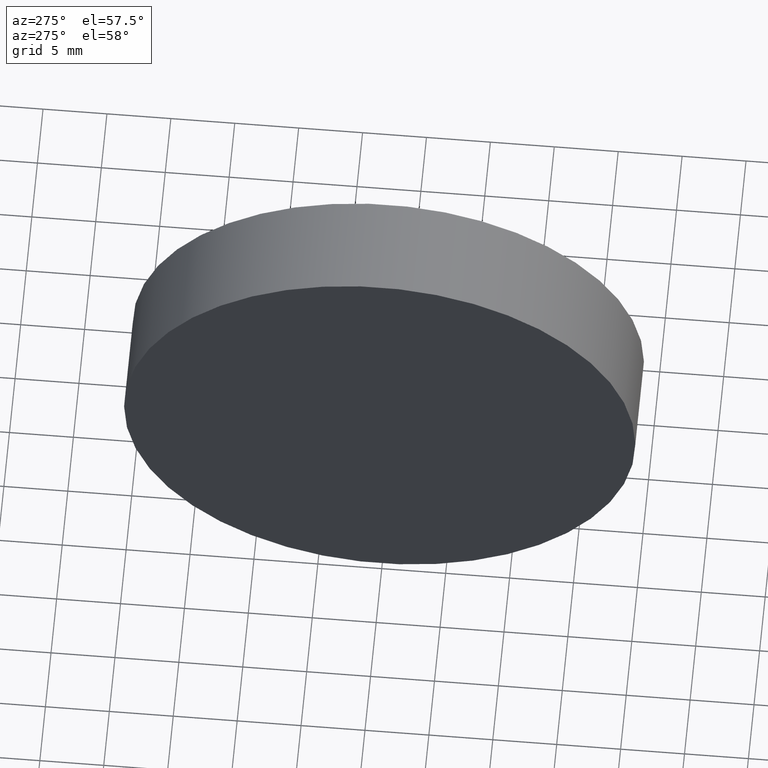
[diagram: clean part render]
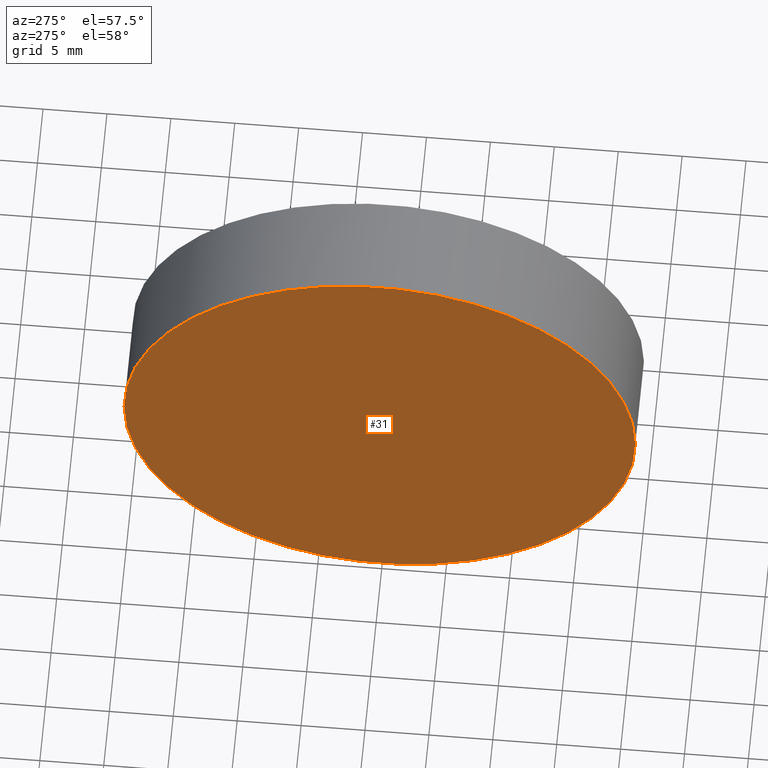
[diagram: same view with one face highlighted and labeled with its STEP entity id]
A machine part, auxiliary view. The second image highlights one B-rep face of the part: STEP entity #31.
In plain terms, the highlighted planar face has unit normal (1, -0, 0).
Its self-contained STEP definition (entity closure, byte-faithful):
#31 = ADVANCED_FACE ( 'NONE', ( #132 ), #127, .F. ) ;
#35 = CARTESIAN_POINT ( 'NONE',  ( 114.9754472601862300, 65.15745182658619700, 0.0000000000000000000 ) ) ;
#39 = CARTESIAN_POINT ( 'NONE',  ( 114.9754472601862100, 65.15745182658619700, 0.0000000000000000000 ) ) ;
#44 = ORIENTED_EDGE ( 'NONE', *, *, #151, .T. ) ;
#49 = ORIENTED_EDGE ( 'NONE', *, *, #158, .T. ) ;
#51 = DIRECTION ( 'NONE',  ( 1.000000000000000000, -6.488933942079480100E-016, 0.0000000000000000000 ) ) ;
#61 = AXIS2_PLACEMENT_3D ( 'NONE', #35, #51, #98 ) ;
#69 = EDGE_LOOP ( 'NONE', ( #49, #44 ) ) ;
#71 = VERTEX_POINT ( 'NONE', #130 ) ;
#72 = DIRECTION ( 'NONE',  ( -1.000000000000000000, 6.488933942079480100E-016, -0.0000000000000000000 ) ) ;
#73 = CARTESIAN_POINT ( 'NONE',  ( 114.9754472601862300, 85.15745182658619700, 2.449293598294710100E-015 ) ) ;
#88 = CIRCLE ( 'NONE', #154, 20.00000000000000400 ) ;
#98 = DIRECTION ( 'NONE',  ( 6.488933942079480100E-016, 1.000000000000000000, 0.0000000000000000000 ) ) ;
#119 = DIRECTION ( 'NONE',  ( -6.938893903907227400E-016, -1.000000000000000000, 0.0000000000000000000 ) ) ;
#121 = CARTESIAN_POINT ( 'NONE',  ( 114.9754472601862100, 65.15745182658619700, 0.0000000000000000000 ) ) ;
#122 = VERTEX_POINT ( 'NONE', #73 ) ;
#127 = PLANE ( 'NONE',  #61 ) ;
#128 = DIRECTION ( 'NONE',  ( -1.000000000000000000, 6.488933942079480100E-016, -0.0000000000000000000 ) ) ;
#130 = CARTESIAN_POINT ( 'NONE',  ( 114.9754472601862000, 45.15745182658619000, 0.0000000000000000000 ) ) ;
#132 = FACE_OUTER_BOUND ( 'NONE', #69, .T. ) ;
#136 = AXIS2_PLACEMENT_3D ( 'NONE', #121, #128, #140 ) ;
#140 = DIRECTION ( 'NONE',  ( -6.938893903907227400E-016, -1.000000000000000000, 0.0000000000000000000 ) ) ;
#151 = EDGE_CURVE ( 'NONE', #122, #71, #88, .T. ) ;
#154 = AXIS2_PLACEMENT_3D ( 'NONE', #39, #72, #119 ) ;
#157 = CIRCLE ( 'NONE', #136, 20.00000000000000400 ) ;
#158 = EDGE_CURVE ( 'NONE', #71, #122, #157, .T. ) ;